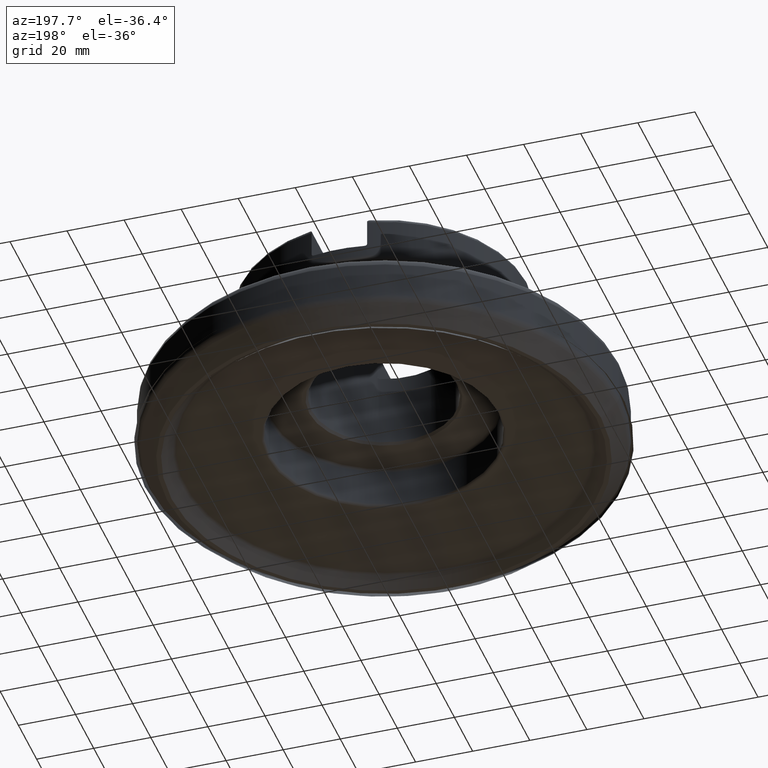
[diagram: clean part render]
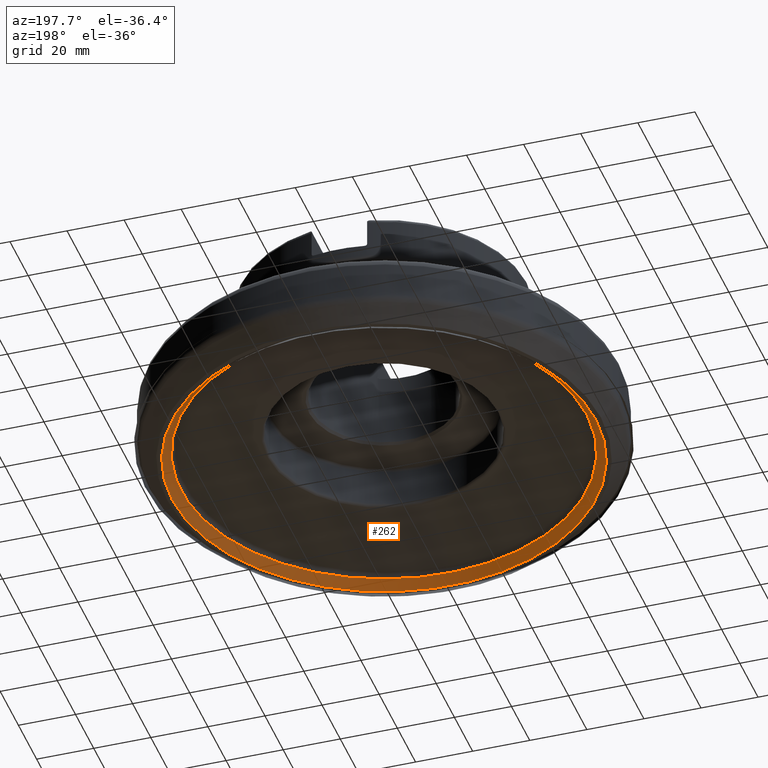
[diagram: same view with one face highlighted and labeled with its STEP entity id]
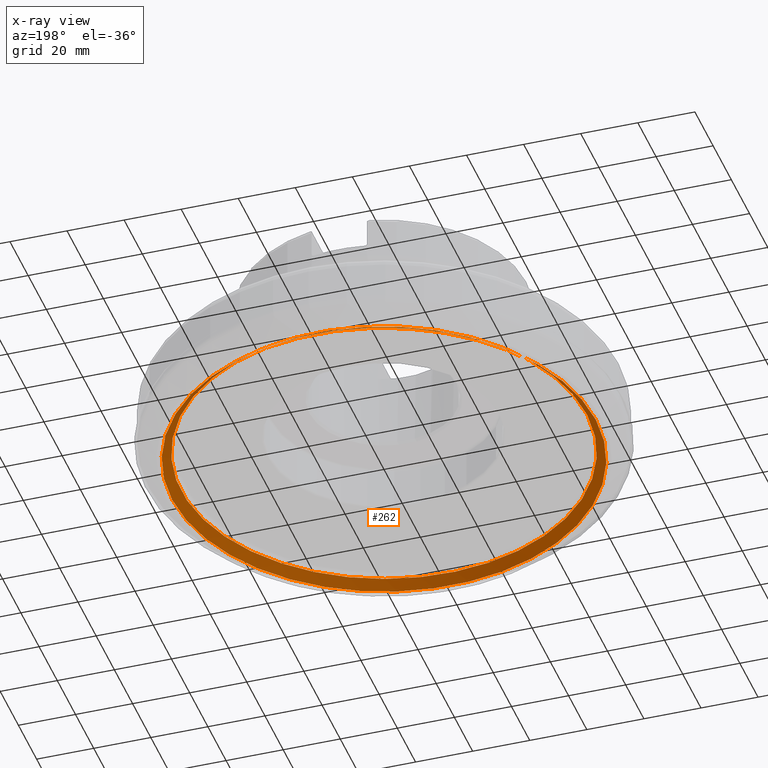
[diagram: x-ray of the same camera — body ghosted, the highlighted face saturated]
A machine part, auxiliary view. The second image highlights one B-rep face of the part: STEP entity #262.
The next image is the same camera in x-ray: the body ghosted, the highlighted face saturated — about 0% of this face is hidden behind the body in this view.
In plain terms, the highlighted face is a SurfaceOfRevolution surface.
Its self-contained STEP definition (entity closure, byte-faithful):
#121=SURFACE_OF_REVOLUTION('',#311,#143);
#143=AXIS1_PLACEMENT('',#2041,#1361);
#262=ADVANCED_FACE('',(#418,#419),#121,.F.);
#311=LINE('',#2040,#347);
#347=VECTOR('',#1360,4.41942801874017);
#418=FACE_BOUND('',#524,.T.);
#419=FACE_BOUND('',#525,.T.);
#524=EDGE_LOOP('',(#728));
#525=EDGE_LOOP('',(#729));
#728=ORIENTED_EDGE('',*,*,#923,.T.);
#729=ORIENTED_EDGE('',*,*,#924,.F.);
#821=VERTEX_POINT('',#2035);
#822=VERTEX_POINT('',#2039);
#923=EDGE_CURVE('',#821,#821,#977,.T.);
#924=EDGE_CURVE('',#822,#822,#978,.T.);
#977=CIRCLE('',#1127,71.0364045407746);
#978=CIRCLE('',#1128,74.2323599719744);
#1127=AXIS2_PLACEMENT_3D('',#2034,#1354,#1355);
#1128=AXIS2_PLACEMENT_3D('',#2038,#1358,#1359);
#1354=DIRECTION('',(0.,0.,-1.));
#1355=DIRECTION('',(-1.,0.,0.));
#1358=DIRECTION('',(0.,0.,-1.));
#1359=DIRECTION('',(-1.,0.,0.));
#1360=DIRECTION('',(0.252464561857565,0.701310650755438,0.666652095281378));
#1361=DIRECTION('',(0.,0.,-1.));
#2034=CARTESIAN_POINT('',(0.,0.,3.26823552302436));
#2035=CARTESIAN_POINT('',(-71.0364045407746,0.,3.26823552302436));
#2038=CARTESIAN_POINT('',(0.,0.,0.322014574385997));
#2039=CARTESIAN_POINT('',(-74.2323599719744,0.,0.322014574385997));
#2040=CARTESIAN_POINT('',(-7.87299962083616,-73.8136785696195,0.322014574385997));
#2041=CARTESIAN_POINT('',(0.,0.,0.));